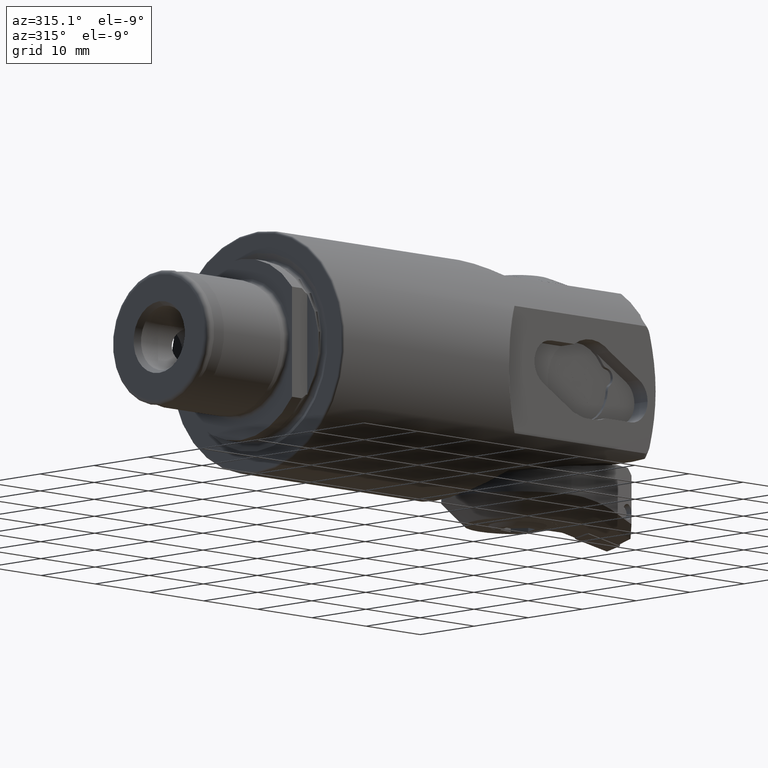
[diagram: clean part render]
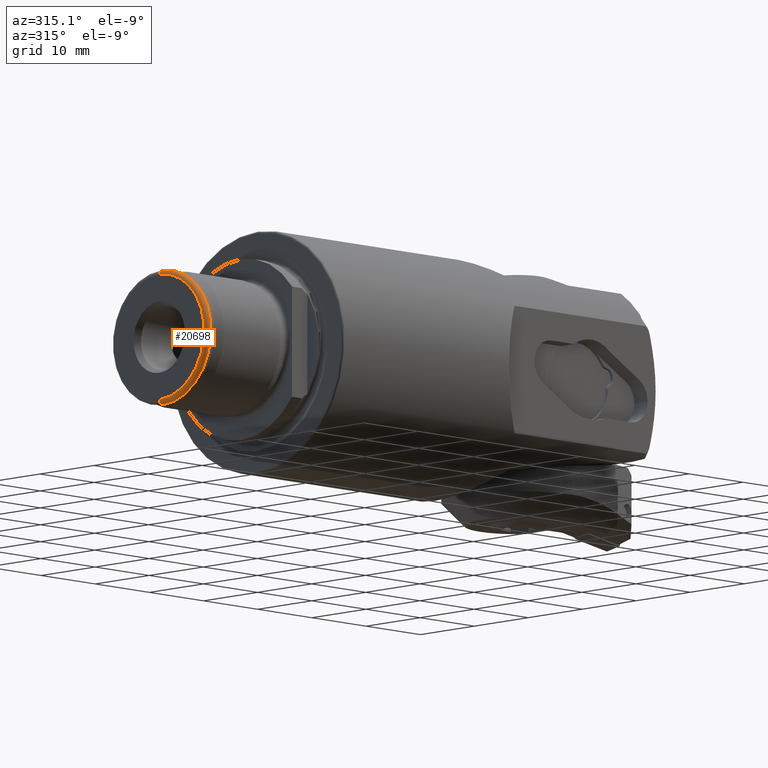
[diagram: same view with one face highlighted and labeled with its STEP entity id]
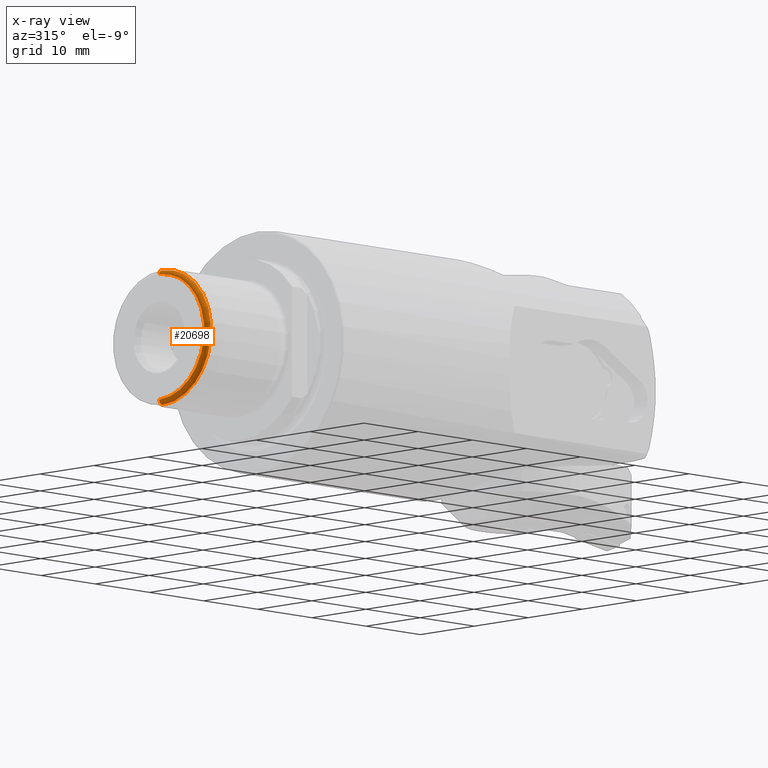
[diagram: x-ray of the same camera — body ghosted, the highlighted face saturated]
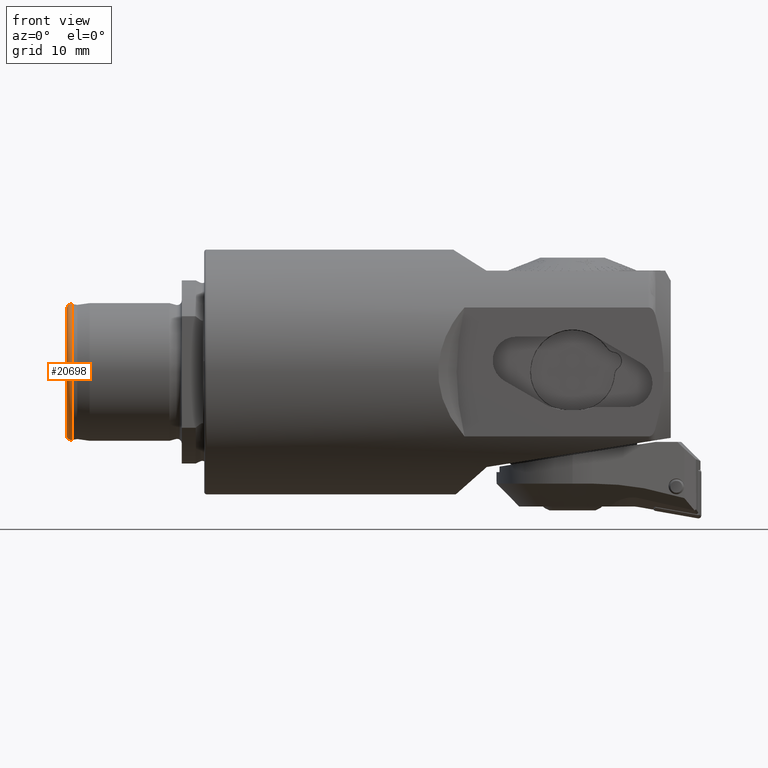
[diagram: same view with one face highlighted and labeled with its STEP entity id]
A machine part, auxiliary view. The second image highlights one B-rep face of the part: STEP entity #20698.
The next image is the same camera in x-ray: the body ghosted, the highlighted face saturated — about 0% of this face is hidden behind the body in this view.
A second angle (front view) of the same face is appended — the face is thin or edge-on in the first view.
In plain terms, the highlighted toroidal blend (fillet) surface has major radius 8.3 mm and minor (blend) radius 0.6 mm.
Its self-contained STEP definition (entity closure, byte-faithful):
#690 = AXIS2_PLACEMENT_3D ( 'NONE', #7189, #7402, #3437 ) ;
#1028 = EDGE_CURVE ( 'NONE', #23883, #23631, #19462, .T. ) ;
#2003 = CARTESIAN_POINT ( 'NONE',  ( -17.99999999999999600, 0.0000000000000000000, 8.300000000000002500 ) ) ;
#2194 = EDGE_LOOP ( 'NONE', ( #27719, #24678, #20034, #22283 ) ) ;
#3437 = DIRECTION ( 'NONE',  ( 0.0000000000000000000, 0.0000000000000000000, 1.000000000000000000 ) ) ;
#4447 = AXIS2_PLACEMENT_3D ( 'NONE', #30852, #30741, #15808 ) ;
#5772 = VERTEX_POINT ( 'NONE', #22271 ) ;
#5869 = CARTESIAN_POINT ( 'NONE',  ( -17.29581109339984500, 0.0000000000000000000, 0.0000000000000000000 ) ) ;
#6844 = CARTESIAN_POINT ( 'NONE',  ( -17.39999999999999900, 1.016456843292303200E-015, -8.300000000000002500 ) ) ;
#7189 = CARTESIAN_POINT ( 'NONE',  ( -17.99999999999999600, 0.0000000000000000000, 0.0000000000000000000 ) ) ;
#7402 = DIRECTION ( 'NONE',  ( -1.000000000000000000, -0.0000000000000000000, -0.0000000000000000000 ) ) ;
#8080 = CIRCLE ( 'NONE', #28456, 0.5999999999999989800 ) ;
#8336 = FACE_OUTER_BOUND ( 'NONE', #2194, .T. ) ;
#8457 = DIRECTION ( 'NONE',  ( 0.0000000000000000000, 0.0000000000000000000, 1.000000000000000000 ) ) ;
#8769 = DIRECTION ( 'NONE',  ( 0.0000000000000000000, -1.000000000000000000, 0.0000000000000000000 ) ) ;
#9447 = DIRECTION ( 'NONE',  ( 0.0000000000000000000, -1.224646799147352000E-016, 1.000000000000000000 ) ) ;
#10285 = VERTEX_POINT ( 'NONE', #13256 ) ;
#13256 = CARTESIAN_POINT ( 'NONE',  ( -17.29581109339984500, 1.088819343042417300E-015, -8.890884651807326100 ) ) ;
#13360 = CARTESIAN_POINT ( 'NONE',  ( -17.99999999999999600, 1.052638093167360200E-015, -8.300000000000002500 ) ) ;
#15036 = CIRCLE ( 'NONE', #31187, 0.5999999999999989800 ) ;
#15322 = AXIS2_PLACEMENT_3D ( 'NONE', #5869, #23737, #8457 ) ;
#15808 = DIRECTION ( 'NONE',  ( 0.0000000000000000000, 0.0000000000000000000, 1.000000000000000000 ) ) ;
#17403 = EDGE_CURVE ( 'NONE', #10285, #23883, #8080, .T. ) ;
#19462 = CIRCLE ( 'NONE', #690, 8.300000000000002500 ) ;
#20034 = ORIENTED_EDGE ( 'NONE', *, *, #28097, .T. ) ;
#20698 = ADVANCED_FACE ( 'NONE', ( #8336 ), #25425, .T. ) ;
#22271 = CARTESIAN_POINT ( 'NONE',  ( -17.29581109339984500, 0.0000000000000000000, 8.890884651807326100 ) ) ;
#22283 = ORIENTED_EDGE ( 'NONE', *, *, #1028, .F. ) ;
#23631 = VERTEX_POINT ( 'NONE', #2003 ) ;
#23737 = DIRECTION ( 'NONE',  ( -1.000000000000000000, -0.0000000000000000000, -0.0000000000000000000 ) ) ;
#23883 = VERTEX_POINT ( 'NONE', #13360 ) ;
#24050 = CARTESIAN_POINT ( 'NONE',  ( -17.39999999999999900, 0.0000000000000000000, 8.300000000000002500 ) ) ;
#24678 = ORIENTED_EDGE ( 'NONE', *, *, #25665, .T. ) ;
#24694 = DIRECTION ( 'NONE',  ( -0.0000000000000000000, 1.000000000000000000, 1.224646799147353200E-016 ) ) ;
#25425 = TOROIDAL_SURFACE ( 'NONE', #4447, 8.300000000000002500, 0.5999999999999987600 ) ;
#25665 = EDGE_CURVE ( 'NONE', #10285, #5772, #29536, .T. ) ;
#26531 = DIRECTION ( 'NONE',  ( 0.0000000000000000000, 0.0000000000000000000, -1.000000000000000000 ) ) ;
#27719 = ORIENTED_EDGE ( 'NONE', *, *, #17403, .F. ) ;
#28097 = EDGE_CURVE ( 'NONE', #5772, #23631, #15036, .T. ) ;
#28456 = AXIS2_PLACEMENT_3D ( 'NONE', #6844, #24694, #9447 ) ;
#29536 = CIRCLE ( 'NONE', #15322, 8.890884651807326100 ) ;
#30741 = DIRECTION ( 'NONE',  ( -1.000000000000000000, -0.0000000000000000000, -0.0000000000000000000 ) ) ;
#30852 = CARTESIAN_POINT ( 'NONE',  ( -17.39999999999999900, 0.0000000000000000000, 0.0000000000000000000 ) ) ;
#31187 = AXIS2_PLACEMENT_3D ( 'NONE', #24050, #8769, #26531 ) ;